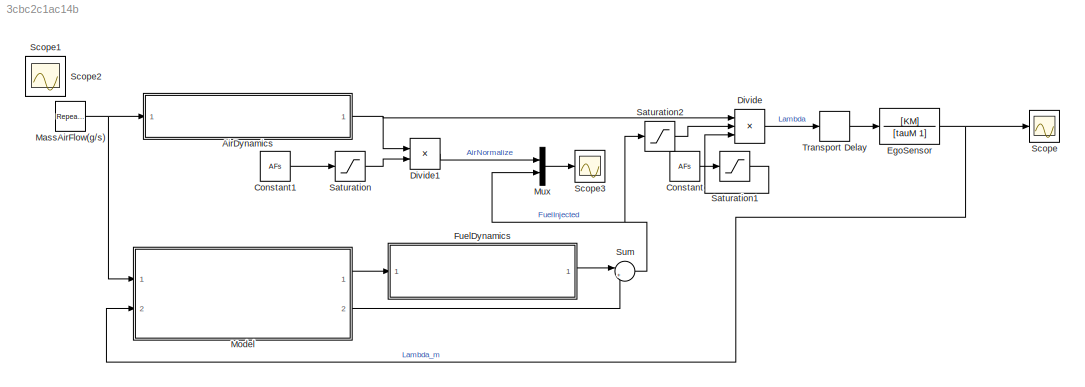
MODEL slx_3cbc2c1ac14b
KIND model
CONFIG AbsTol = auto
CONFIG EnableMultiTasking = on
CONFIG FixedStep = 0.01
CONFIG MaxStep = auto
CONFIG MinStep = auto
CONFIG RelTol = 1e-3
CONFIG SampleTimeConstraint = Unconstrained
CONFIG SolverName = ode1
CONFIG StartTime = 0.0
CONFIG StopFcn = FuelControlAutoGrading
CONFIG StopTime = 40
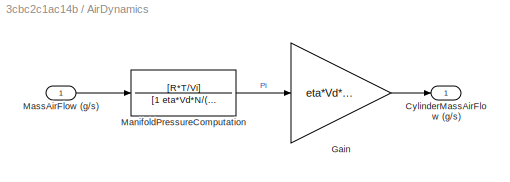
BLOCK [SubSystem] AirDynamics
  Ports = [1, 1]
  RequestExecContextInheritance = off
BLOCK [Outport] AirDynamics/CylinderMassAirFlow (g//s)
  VectorParamsAs1DForOutWhenUnconnected = off
BLOCK [Gain] AirDynamics/Gain
  Gain = eta*Vd*N/(2*R*T)
BLOCK [TransferFcn] AirDynamics/ManifoldPressureComputation
  Denominator = [1 eta*Vd*N/(2*Vi)]
  Numerator = [R*T/Vi]
BLOCK [Inport] AirDynamics/MassAirFlow (g//s)
BLOCK [Constant] Constant
  Value = AFs
BLOCK [Constant] Constant1
  Value = AFs
BLOCK [Product] Divide
  Inputs = *//
  Ports = [3, 1]
BLOCK [Product] Divide1
  Inputs = */
  Ports = [2, 1]
BLOCK [TransferFcn] EgoSensor
  Denominator = [tauM 1]
  Numerator = [KM]
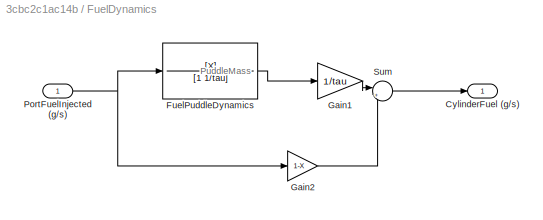
BLOCK [SubSystem] FuelDynamics
  Ports = [1, 1]
  RequestExecContextInheritance = off
BLOCK [Outport] FuelDynamics/CylinderFuel (g//s)
  VectorParamsAs1DForOutWhenUnconnected = off
BLOCK [TransferFcn] FuelDynamics/FuelPuddleDynamics
  Denominator = [1 1/tau]
  Numerator = [X]
BLOCK [Gain] FuelDynamics/Gain1
  Gain = 1/tau
BLOCK [Gain] FuelDynamics/Gain2
  Gain = 1-X
BLOCK [Inport] FuelDynamics/PortFuelInjected (g//s)
BLOCK [Sum] FuelDynamics/Sum
  Inputs = |++
  Ports = [2, 1]
BLOCK [Reference] MassAirFlow(g//s)  REF=simulink/Sources/Repeating
Sequence
  Ports = [0, 1]
  SourceBlock = simulink/Sources/Repeating\nSequence
  SourceProductBaseCode = SL
  SourceType = Repeating table
BLOCK [ModelReference] Model
  ModelNameDialog = FuelController.slx
  ModelReferenceVersion = 9.8
  Ports = [2, 2]
BLOCK [Mux] Mux
  DisplayOption = bar
  Inputs = 2
  Ports = [2, 1]
BLOCK [Saturate] Saturation
  LowerLimit = 0.0005
  UpperLimit = 10000000
BLOCK [Saturate] Saturation1
  LowerLimit = 0.0005
  UpperLimit = 10000000
BLOCK [Saturate] Saturation2
  LowerLimit = 0.0005
  UpperLimit = 10000000
BLOCK [Scope] Scope
  Floating = off
  NumInputPorts = 1
  Ports = [1]
  ScopeSpecificationString = Simulink.scopes.TimeScopeBlockCfg('CurrentConfiguration', extmgr.ConfigurationSet(extmgr.Configuration('Core','General UI',true,'FigureColor',[1 1 1]),extmgr.Configuration('Core','Source UI',true),extmgr.Configuration('Sources','WiredSimulink',true,'DataLoggingSaveFormat','Array','DataLoggingMaxPoints','10000','DataLoggingLimitDataPoints',true,'DataLoggingDecimation','1','DataLoggingDecimateData',...<+2932ch>
BLOCK [Scope] Scope1
  Floating = off
  IOType = viewer
  NumInputPorts = 1
  Ports = []
  ScopeSpecificationString = Simulink.scopes.TimeScopeBlockCfg('CurrentConfiguration', extmgr.ConfigurationSet(extmgr.Configuration('Core','General UI',true),extmgr.Configuration('Core','Source UI',true),extmgr.Configuration('Sources','WiredSimulink',true,'DataLoggingMaxPoints','7500','DataLoggingLimitDataPoints',true,'DataLoggingSaveFormat','Array','DataLoggingDecimation','1','DataLoggingDecimateData',true),extmgr.Configurat...<+908ch>
BLOCK [Scope] Scope2
  Floating = off
  IOType = viewer
  NumInputPorts = 1
  Ports = []
  ScopeSpecificationString = Simulink.scopes.TimeScopeBlockCfg('CurrentConfiguration', extmgr.ConfigurationSet(extmgr.Configuration('Core','General UI',true),extmgr.Configuration('Core','Source UI',true),extmgr.Configuration('Sources','WiredSimulink',true,'DataLoggingVariableName','ScopeData1','DataLoggingMaxPoints','10000','DataLoggingLimitDataPoints',true,'DataLoggingSaveFormat','Array','DataLoggingDecimation','1','DataLogg...<+1648ch>
BLOCK [Scope] Scope3
  Floating = off
  NumInputPorts = 1
  Ports = [1]
  ScopeSpecificationString = Simulink.scopes.TimeScopeBlockCfg('CurrentConfiguration', extmgr.ConfigurationSet(extmgr.Configuration('Core','General UI',true,'FigureColor',[1 1 1]),extmgr.Configuration('Core','Source UI',true),extmgr.Configuration('Sources','WiredSimulink',true,'DataLoggingVariableName','InjectedAirandFuel','DataLogging',true,'DataLoggingSaveFormat','Array'),extmgr.Configuration('Visuals','Time Domain',true,'S...<+1678ch>
BLOCK [Sum] Sum
  Inputs = |++
  Ports = [2, 1]
BLOCK [TransportDelay] Transport Delay
  DelayTime = TL
  Ports = [1, 1]
ANNOTATION FuelDynamics: PuddleMass
LINE AirDynamics/Gain:1 -> AirDynamics/CylinderMassAirFlow (g//s):1
LINE AirDynamics/ManifoldPressureComputation:1 -> AirDynamics/Gain:1
LINE AirDynamics/MassAirFlow (g//s):1 -> AirDynamics/ManifoldPressureComputation:1
NET AirDynamics:1 -> Divide1:1, Divide:1
LINE Constant1:1 -> Saturation:1
LINE Constant:1 -> Saturation1:1
LINE Divide1:1 -> Mux:1
LINE Divide:1 -> Transport Delay:1
NET EgoSensor:1 -> Model:2, Scope:1
LINE FuelDynamics/FuelPuddleDynamics:1 -> FuelDynamics/Gain1:1
LINE FuelDynamics/Gain1:1 -> FuelDynamics/Sum:1
LINE FuelDynamics/Gain2:1 -> FuelDynamics/Sum:2
NET FuelDynamics/PortFuelInjected (g//s):1 -> FuelDynamics/FuelPuddleDynamics:1, FuelDynamics/Gain2:1
LINE FuelDynamics/Sum:1 -> FuelDynamics/CylinderFuel (g//s):1
LINE FuelDynamics:1 -> Sum:1
NET MassAirFlow(g//s):1 -> AirDynamics:1, Model:1
LINE Model:1 -> FuelDynamics:1
LINE Model:2 -> Sum:2
LINE Mux:1 -> Scope3:1
LINE Saturation1:1 -> Divide:3
LINE Saturation2:1 -> Divide:2
LINE Saturation:1 -> Divide1:2
NET Sum:1 -> Mux:2, Saturation2:1
LINE Transport Delay:1 -> EgoSensor:1
note: NET lines group one-source signal fan-out (src -> all destinations, sorted); 1:1 wires keep LINE
